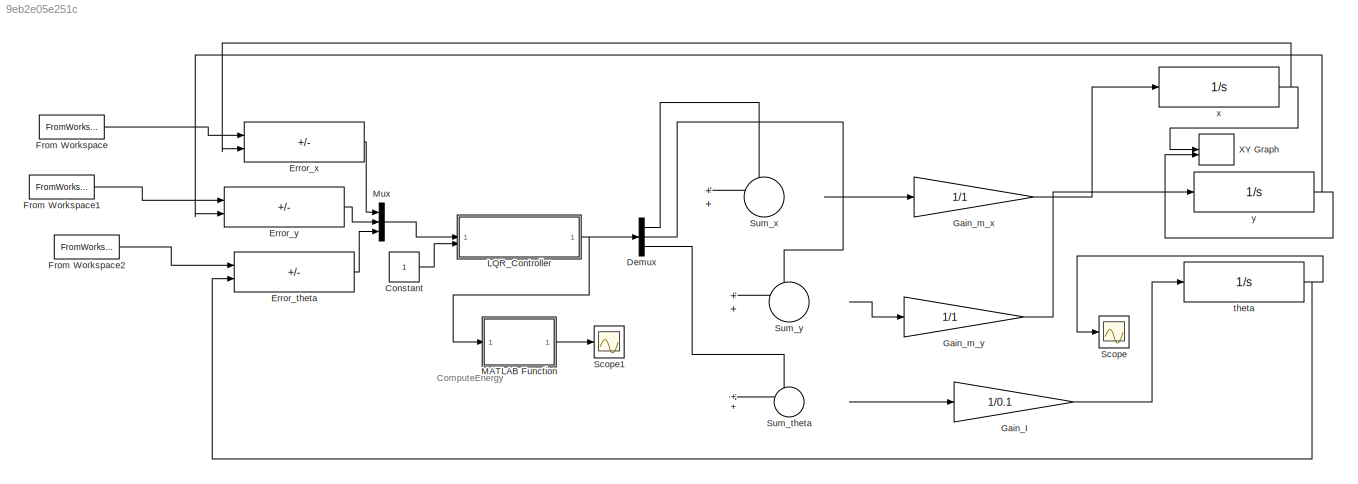
MODEL slx_9eb2e05e251c
KIND model
CONFIG AbsTol = auto
CONFIG EnableMultiTasking = off
CONFIG FixedStep = auto
CONFIG MaxStep = auto
CONFIG MinStep = auto
CONFIG RelTol = 1e-3
CONFIG SampleTimeConstraint = Unconstrained
CONFIG SolverName = VariableStepAuto
CONFIG StartTime = 0.0
CONFIG StopTime = 10.0
BLOCK [Constant] Constant
BLOCK [Demux] Demux
  Outputs = 3
BLOCK [Sum] Error_theta
  IconShape = rectangular
  Inputs = +-
BLOCK [Sum] Error_x
  IconShape = rectangular
  Inputs = +-
BLOCK [Sum] Error_y
  IconShape = rectangular
  Inputs = +-
BLOCK [FromWorkspace] From Workspace
  VariableName = x_target_data
BLOCK [FromWorkspace] From Workspace1
  VariableName = y_target_data
BLOCK [FromWorkspace] From Workspace2
  VariableName = theta_target_data
BLOCK [Gain] Gain_I
  Gain = 1/0.1
BLOCK [Gain] Gain_m_x
  Gain = 1/1
BLOCK [Gain] Gain_m_y
  Gain = 1/1
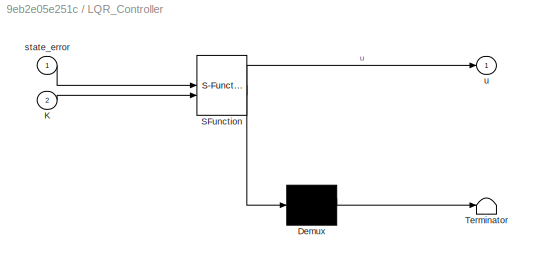
BLOCK [SubSystem] LQR_Controller
  ErrorFcn = Stateflow.Translate.translate
  PermitHierarchicalResolution = ExplicitOnly
  SFBlockType = MATLAB Function
  TreatAsAtomicUnit = on
BLOCK [Demux] LQR_Controller/ Demux 
  Outputs = 1
BLOCK [S-Function] LQR_Controller/ SFunction 
  EnableBusSupport = on
  FunctionName = sf_sfun
  PortCounts = [2 2]
  SFcnIsStateOwnerBlock = off
  SFunctionDeploymentMode = off
  Tag = Stateflow S-Function 2
BLOCK [Terminator] LQR_Controller/ Terminator 
BLOCK [Inport] LQR_Controller/K
  Port = 2
BLOCK [Inport] LQR_Controller/state_error
BLOCK [Outport] LQR_Controller/u
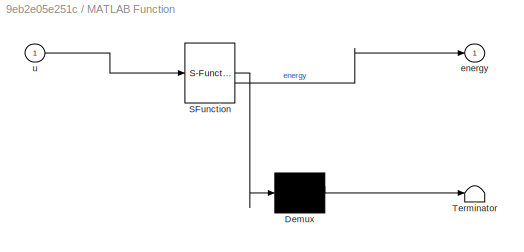
BLOCK [SubSystem] MATLAB Function
  ErrorFcn = Stateflow.Translate.translate
  PermitHierarchicalResolution = ExplicitOnly
  SFBlockType = MATLAB Function
  TreatAsAtomicUnit = on
BLOCK [Demux] MATLAB Function/ Demux 
  Outputs = 1
BLOCK [S-Function] MATLAB Function/ SFunction 
  EnableBusSupport = on
  FunctionName = sf_sfun
  PortCounts = [1 2]
  SFcnIsStateOwnerBlock = off
  SFunctionDeploymentMode = off
  Tag = Stateflow S-Function 1
BLOCK [Terminator] MATLAB Function/ Terminator 
BLOCK [Outport] MATLAB Function/energy
BLOCK [Inport] MATLAB Function/u
BLOCK [Mux] Mux
  DisplayOption = bar
  Inputs = 3
BLOCK [Scope] Scope
  Floating = off
  NumInputPorts = 1
  ScopeSpecificationString = Simulink.scopes.TimeScopeBlockCfg('CurrentConfiguration', extmgr.ConfigurationSet(extmgr.Configuration('Core','General UI',true),extmgr.Configuration('Core','Source UI',true),extmgr.Configuration('Sources','WiredSimulink',true),extmgr.Configuration('Visuals','Time Domain',true,'SerializedDisplays',{struct('MinYLimReal','-1516630519990006194549094863462592422084608.00000','MaxYLimReal','13649674679...<+1782ch>
BLOCK [Scope] Scope1
  Floating = off
  NumInputPorts = 1
  ScopeSpecificationString = Simulink.scopes.TimeScopeBlockCfg('CurrentConfiguration', extmgr.ConfigurationSet(extmgr.Configuration('Core','General UI',true),extmgr.Configuration('Core','Source UI',true),extmgr.Configuration('Sources','WiredSimulink',true,'DataLoggingVariableName','ScopeData1'),extmgr.Configuration('Visuals','Time Domain',true,'SerializedDisplays',{struct('MinYLimReal','-18744642215137202679722937614284070168...<+2171ch>
BLOCK [Sum] Sum_theta
BLOCK [Sum] Sum_x
BLOCK [Sum] Sum_y
BLOCK [Record] XY Graph
  CompatibilityTag = XY
  FileSettingsInternal = {"entries":[{"content":{"excelSettings":{"content":{},"type":"Streamout.ExcelSettings"}},"type":"Streamout.FileSettingStorage","uuid":""}],"packageUris":["http:\/\/schema.mathworks.com\/mf0\/streamout_blocks\/R2020a"],"version":"1.0"}
  Layout = [1 1]
  SignalsInternal = {"entries":[{"content":{"signals":[{"content":{"blockPath":[],"dimensions":[1,1],"domain":"","lineColor":"#a2142f","plots":[ 1 ],"port":1,"sid":[""],"signalID":1,"signalName":"x"},"type":"RecordBlkView.Signal","uuid":""},{"content":{"blockPath":[],"dimensions":[1,1],"domain":"","lineColor":"#139fff","plots":[ 1 ],"port":2,"sid":[""],"signalID":2,"signalName":"y"},"type":"RecordBlkView.Signal","uui...<+152ch>
  VisualizationBindings = {"xyplotplugin":{"info":[{"series":[{"bindingParametersList":[{"parameter":"X-Axis","signalID":1,"signalName":"x"},{"parameter":"Y-Axis","signalID":2,"signalName":"y"}],"seriesID":0}],"subplotID":1}]}}
BLOCK [Integrator] theta
BLOCK [Integrator] x
BLOCK [Integrator] y
ANNOTATION (root): ComputeEnergy
LINE Constant:1 -> LQR_Controller:2
LINE Demux:1 -> Sum_x:1
LINE Demux:2 -> Sum_y:1
LINE Demux:3 -> Sum_theta:1
LINE Error_theta:1 -> Mux:3
LINE Error_x:1 -> Mux:1
LINE Error_y:1 -> Mux:2
LINE From Workspace1:1 -> Error_y:1
LINE From Workspace2:1 -> Error_theta:1
LINE From Workspace:1 -> Error_x:1
LINE Gain_I:1 -> theta:1
LINE Gain_m_x:1 -> x:1
LINE Gain_m_y:1 -> y:1
NET LQR_Controller:1 -> Demux:1, MATLAB Function:1
LINE MATLAB Function:1 -> Scope1:1
LINE Mux:1 -> LQR_Controller:1
LINE Sum_theta:1 -> Gain_I:1
LINE Sum_x:1 -> Gain_m_x:1
LINE Sum_y:1 -> Gain_m_y:1
NET theta:1 -> Error_theta:2, Scope:1
NET x:1 -> Error_x:2, XY Graph:1
NET y:1 -> Error_y:2, XY Graph:2
note: NET lines group one-source signal fan-out (src -> all destinations, sorted); 1:1 wires keep LINE
CHART LQR_Controller states=1 transitions=1
  STATE_LABEL 'eML_blk_kernel()'
  STATE_LABEL 'SCRIPT:\nfunction u = LQR_Controller(state_error, K)\n    % Compute control input using precomputed LQR gain\n    u = -K * state_error; % Control law\nend\n'
CHART MATLAB Function states=1 transitions=1
  STATE_LABEL 'eML_blk_kernel()'
  STATE_LABEL 'SCRIPT:\nfunction energy = ComputeEnergy(u)\n    persistent total_energy;\n    if isempty(total_energy)\n        total_energy = 0;\n    end\n    total_energy = total_energy + sum(u.^2);\n    energy = total_energy;\nend\n'
CHART  states=0 transitions=0
CHART  states=0 transitions=0
